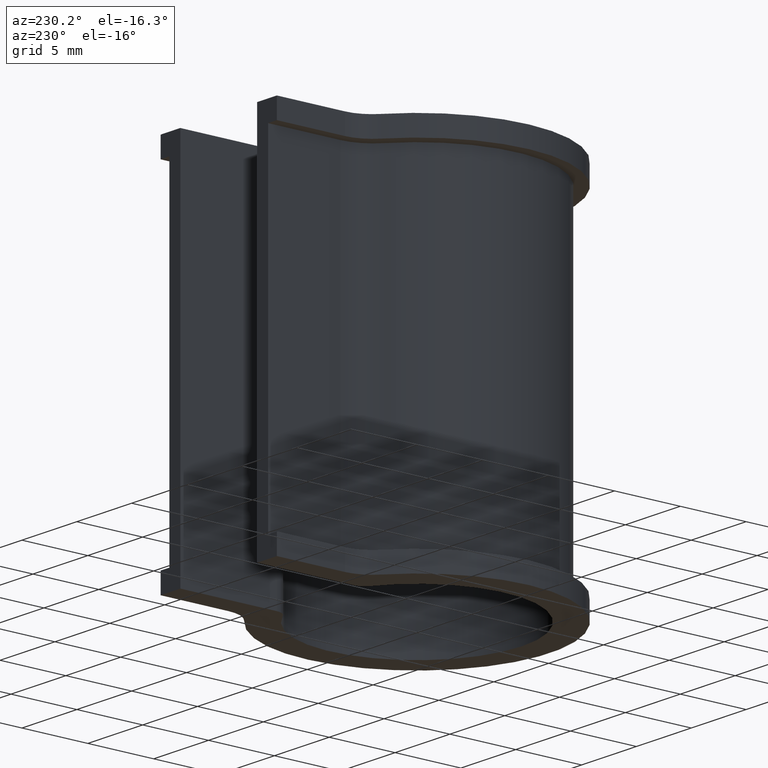
[diagram: clean part render]
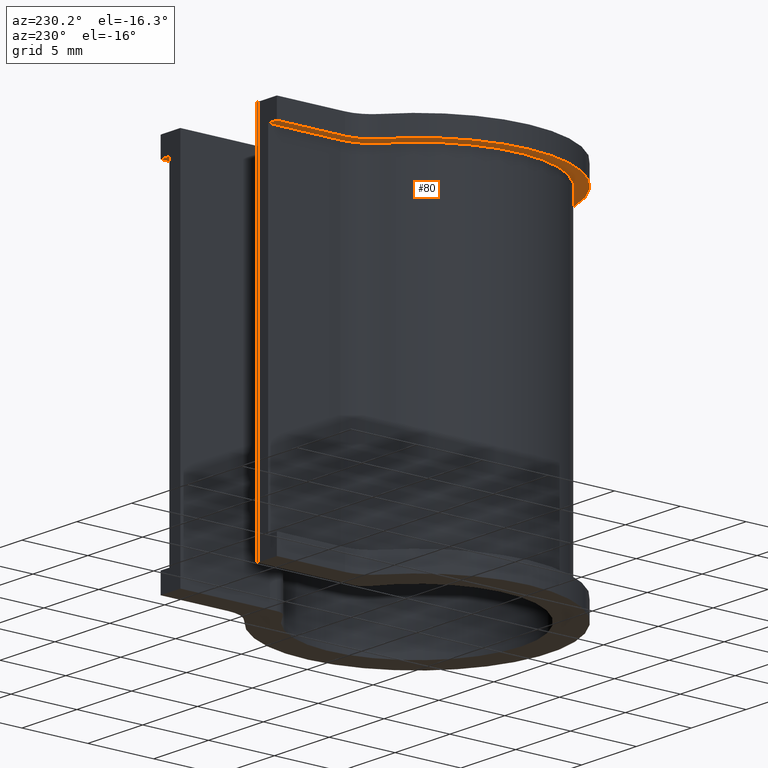
[diagram: same view with one face highlighted and labeled with its STEP entity id]
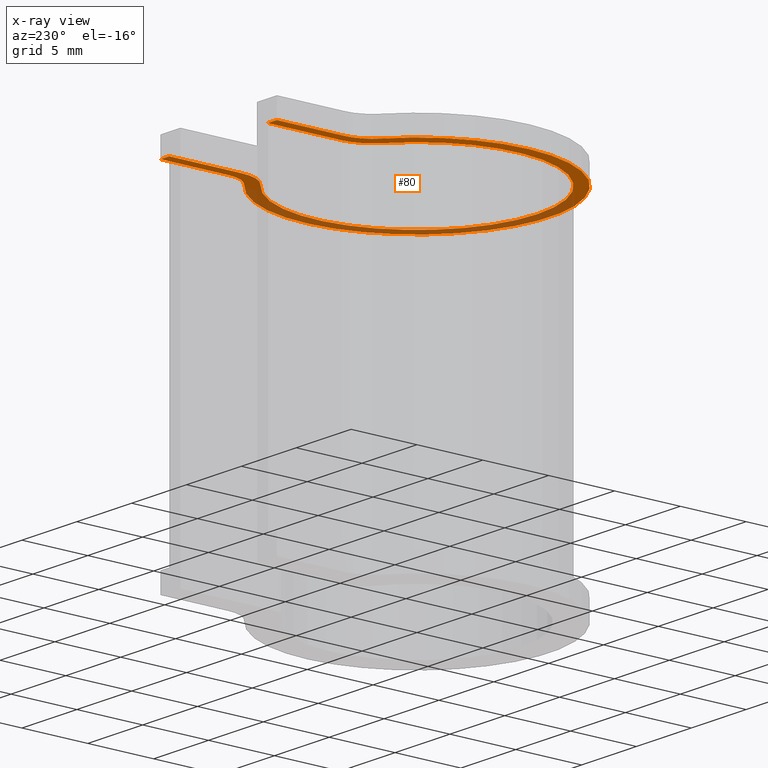
[diagram: x-ray of the same camera — body ghosted, the highlighted face saturated]
A machine part, auxiliary view. The second image highlights one B-rep face of the part: STEP entity #80.
The next image is the same camera in x-ray: the body ghosted, the highlighted face saturated — about 44% of this face is hidden behind the body in this view.
In plain terms, the highlighted planar face has unit normal (0, 0, 1).
Its self-contained STEP definition (entity closure, byte-faithful):
#80 = ADVANCED_FACE( '', ( #112 ), #113, .F. );
#112 = FACE_OUTER_BOUND( '', #164, .T. );
#113 = PLANE( '', #165 );
#164 = EDGE_LOOP( '', ( #253, #254, #255, #256, #257, #258, #259, #260, #261, #262, #263, #264 ) );
#165 = AXIS2_PLACEMENT_3D( '', #265, #266, #267 );
#253 = ORIENTED_EDGE( '', *, *, #454, .T. );
#254 = ORIENTED_EDGE( '', *, *, #455, .T. );
#255 = ORIENTED_EDGE( '', *, *, #456, .T. );
#256 = ORIENTED_EDGE( '', *, *, #457, .T. );
#257 = ORIENTED_EDGE( '', *, *, #458, .T. );
#258 = ORIENTED_EDGE( '', *, *, #459, .F. );
#259 = ORIENTED_EDGE( '', *, *, #460, .F. );
#260 = ORIENTED_EDGE( '', *, *, #461, .T. );
#261 = ORIENTED_EDGE( '', *, *, #462, .F. );
#262 = ORIENTED_EDGE( '', *, *, #463, .T. );
#263 = ORIENTED_EDGE( '', *, *, #464, .F. );
#264 = ORIENTED_EDGE( '', *, *, #445, .F. );
#265 = CARTESIAN_POINT( '', ( 0.000000000000000, 0.000000000000000, 0.000000000000000 ) );
#266 = DIRECTION( '', ( 0.000000000000000, 0.000000000000000, 1.00000000000000 ) );
#267 = DIRECTION( '', ( 0.000000000000000, 1.00000000000000, 0.000000000000000 ) );
#445 = EDGE_CURVE( '', #532, #534, #535, .T. );
#454 = EDGE_CURVE( '', #532, #548, #550, .T. );
#455 = EDGE_CURVE( '', #548, #551, #552, .F. );
#456 = EDGE_CURVE( '', #551, #553, #554, .T. );
#457 = EDGE_CURVE( '', #553, #555, #556, .F. );
#458 = EDGE_CURVE( '', #555, #557, #558, .T. );
#459 = EDGE_CURVE( '', #559, #557, #560, .T. );
#460 = EDGE_CURVE( '', #561, #559, #562, .T. );
#461 = EDGE_CURVE( '', #561, #563, #564, .T. );
#462 = EDGE_CURVE( '', #565, #563, #566, .T. );
#463 = EDGE_CURVE( '', #565, #567, #568, .T. );
#464 = EDGE_CURVE( '', #534, #567, #569, .T. );
#532 = VERTEX_POINT( '', #662 );
#534 = VERTEX_POINT( '', #665 );
#535 = LINE( '', #666, #667 );
#548 = VERTEX_POINT( '', #687 );
#550 = LINE( '', #690, #691 );
#551 = VERTEX_POINT( '', #692 );
#552 = CIRCLE( '', #693, 3.00000000000000 );
#553 = VERTEX_POINT( '', #694 );
#554 = CIRCLE( '', #695, 9.14000000000000 );
#555 = VERTEX_POINT( '', #696 );
#556 = CIRCLE( '', #697, 3.00000000000000 );
#557 = VERTEX_POINT( '', #698 );
#558 = LINE( '', #699, #700 );
#559 = VERTEX_POINT( '', #701 );
#560 = LINE( '', #702, #703 );
#561 = VERTEX_POINT( '', #704 );
#562 = LINE( '', #705, #706 );
#563 = VERTEX_POINT( '', #707 );
#564 = CIRCLE( '', #708, 2.50000000000000 );
#565 = VERTEX_POINT( '', #709 );
#566 = CIRCLE( '', #710, 10.0900000000000 );
#567 = VERTEX_POINT( '', #711 );
#568 = CIRCLE( '', #712, 2.50000000000000 );
#569 = LINE( '', #713, #714 );
#662 = CARTESIAN_POINT( '', ( -4.50000000000001, 15.0554761014034, 0.000000000000000 ) );
#665 = CARTESIAN_POINT( '', ( -5.30000000000000, 15.0554761014034, 0.000000000000000 ) );
#666 = CARTESIAN_POINT( '', ( -3.50000000000000, 15.0554761014034, 0.000000000000000 ) );
#667 = VECTOR( '', #817, 1000.00000000000 );
#687 = CARTESIAN_POINT( '', ( -4.49999999999999, 9.54618248306621, 0.000000000000000 ) );
#690 = CARTESIAN_POINT( '', ( -4.49999999999999, 15.0554761014034, 0.000000000000000 ) );
#691 = VECTOR( '', #826, 1000.00000000000 );
#692 = CARTESIAN_POINT( '', ( -5.64662273476111, 7.18715880520800, 0.000000000000000 ) );
#693 = AXIS2_PLACEMENT_3D( '', #827, #828, #829 );
#694 = CARTESIAN_POINT( '', ( 5.64662273476112, 7.18715880520799, 0.000000000000000 ) );
#695 = AXIS2_PLACEMENT_3D( '', #830, #831, #832 );
#696 = CARTESIAN_POINT( '', ( 4.50000000000001, 9.54618248306620, 0.000000000000000 ) );
#697 = AXIS2_PLACEMENT_3D( '', #833, #834, #835 );
#698 = CARTESIAN_POINT( '', ( 4.50000000000000, 15.0554761014034, 0.000000000000000 ) );
#699 = CARTESIAN_POINT( '', ( 4.50000000000001, 7.95547610140337, 0.000000000000000 ) );
#700 = VECTOR( '', #836, 1000.00000000000 );
#701 = CARTESIAN_POINT( '', ( 5.30000000000000, 15.0554761014034, 0.000000000000000 ) );
#702 = CARTESIAN_POINT( '', ( 5.30000000000003, 15.0554761014034, 0.000000000000000 ) );
#703 = VECTOR( '', #837, 1000.00000000000 );
#704 = CARTESIAN_POINT( '', ( 5.30000000000000, 9.88271723768317, 0.000000000000000 ) );
#705 = CARTESIAN_POINT( '', ( 5.30000000000000, 8.58592452797018, 0.000000000000000 ) );
#706 = VECTOR( '', #838, 1000.00000000000 );
#707 = CARTESIAN_POINT( '', ( 6.25115170770453, 7.92030317142360, 0.000000000000000 ) );
#708 = AXIS2_PLACEMENT_3D( '', #839, #840, #841 );
#709 = CARTESIAN_POINT( '', ( -6.25115170770453, 7.92030317142360, 0.000000000000000 ) );
#710 = AXIS2_PLACEMENT_3D( '', #842, #843, #844 );
#711 = CARTESIAN_POINT( '', ( -5.30000000000000, 9.88271723768317, 0.000000000000000 ) );
#712 = AXIS2_PLACEMENT_3D( '', #845, #846, #847 );
#713 = CARTESIAN_POINT( '', ( -5.30000000000000, 15.0554761014034, 0.000000000000000 ) );
#714 = VECTOR( '', #848, 1000.00000000000 );
#817 = DIRECTION( '', ( -1.00000000000000, 0.000000000000000, 0.000000000000000 ) );
#826 = DIRECTION( '', ( -5.55111512312578E-017, -1.00000000000000, 0.000000000000000 ) );
#827 = CARTESIAN_POINT( '', ( -7.49999999999999, 9.54618248306621, 0.000000000000000 ) );
#828 = DIRECTION( '', ( 0.000000000000000, 0.000000000000000, 1.00000000000000 ) );
#829 = DIRECTION( '', ( 1.00000000000000, 0.000000000000000, 0.000000000000000 ) );
#830 = CARTESIAN_POINT( '', ( 4.33680868994202E-016, 8.67361737988404E-016, 0.000000000000000 ) );
#831 = DIRECTION( '', ( 0.000000000000000, 0.000000000000000, 1.00000000000000 ) );
#832 = DIRECTION( '', ( 1.00000000000000, 5.55111512312578E-017, 0.000000000000000 ) );
#833 = CARTESIAN_POINT( '', ( 7.50000000000001, 9.54618248306620, 0.000000000000000 ) );
#834 = DIRECTION( '', ( 0.000000000000000, 0.000000000000000, 1.00000000000000 ) );
#835 = DIRECTION( '', ( 1.00000000000000, 0.000000000000000, 0.000000000000000 ) );
#836 = DIRECTION( '', ( 5.55111512312578E-017, 1.00000000000000, 0.000000000000000 ) );
#837 = DIRECTION( '', ( -1.00000000000000, 0.000000000000000, 0.000000000000000 ) );
#838 = DIRECTION( '', ( 6.12303176911189E-017, 1.00000000000000, 0.000000000000000 ) );
#839 = CARTESIAN_POINT( '', ( 7.80000000000000, 9.88271723768317, 0.000000000000000 ) );
#840 = DIRECTION( '', ( 0.000000000000000, 0.000000000000000, 1.00000000000000 ) );
#841 = DIRECTION( '', ( 1.00000000000000, 0.000000000000000, 0.000000000000000 ) );
#842 = CARTESIAN_POINT( '', ( 0.000000000000000, 0.000000000000000, 0.000000000000000 ) );
#843 = DIRECTION( '', ( 0.000000000000000, 0.000000000000000, 1.00000000000000 ) );
#844 = DIRECTION( '', ( 1.00000000000000, 0.000000000000000, 0.000000000000000 ) );
#845 = CARTESIAN_POINT( '', ( -7.80000000000000, 9.88271723768317, 0.000000000000000 ) );
#846 = DIRECTION( '', ( 0.000000000000000, 0.000000000000000, 1.00000000000000 ) );
#847 = DIRECTION( '', ( 1.00000000000000, 0.000000000000000, 0.000000000000000 ) );
#848 = DIRECTION( '', ( -6.12303176911189E-017, -1.00000000000000, 0.000000000000000 ) );